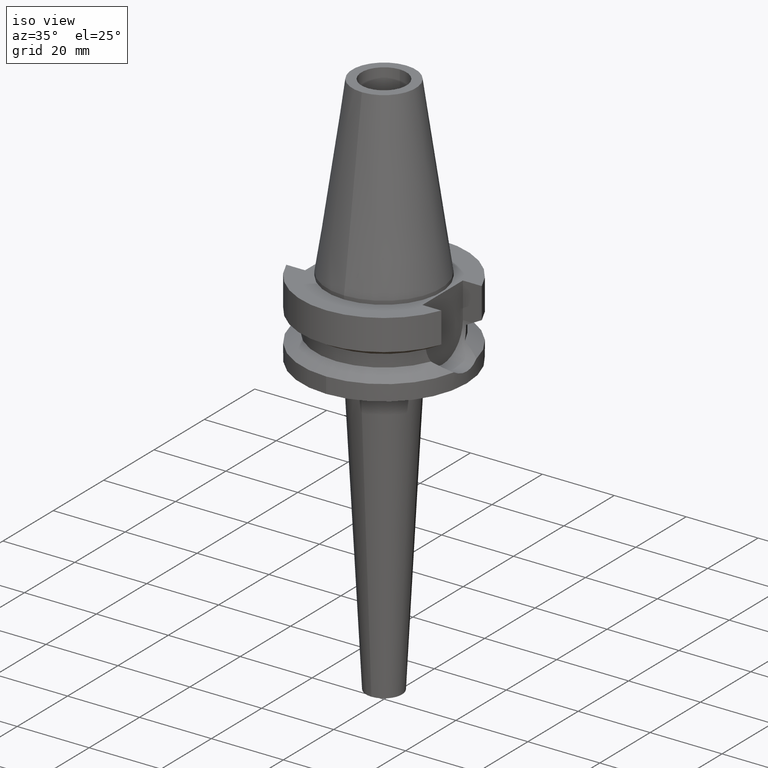
[diagram: clean part render]
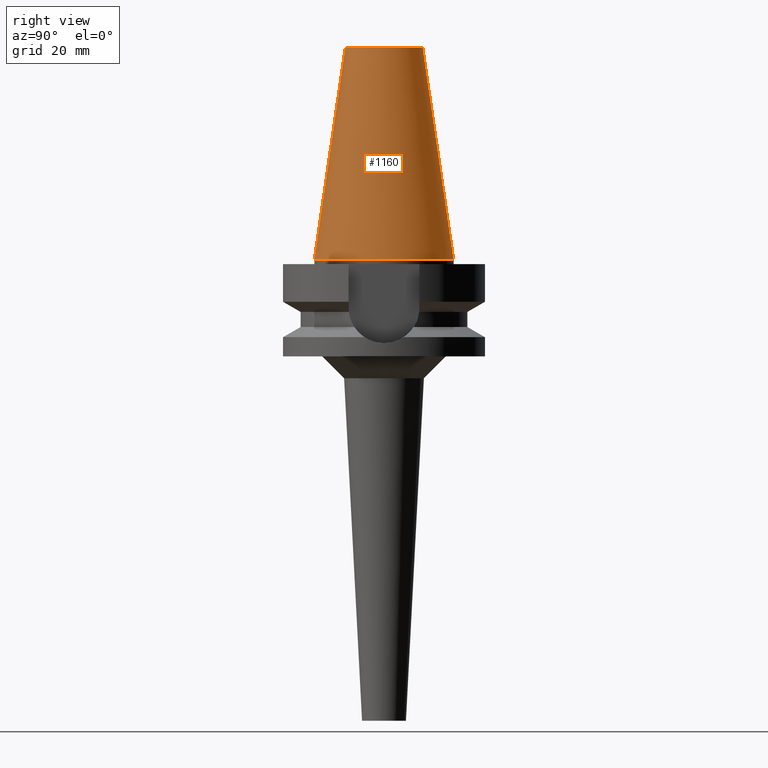
[diagram: tour spotlight — one face highlighted and labeled with its STEP entity id]
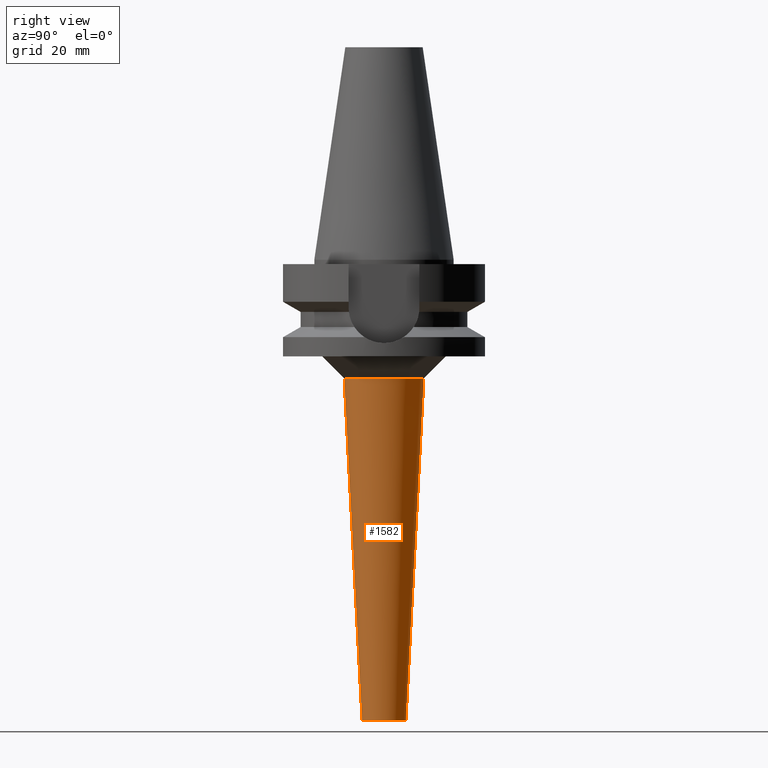
[diagram: tour spotlight — one face highlighted and labeled with its STEP entity id]
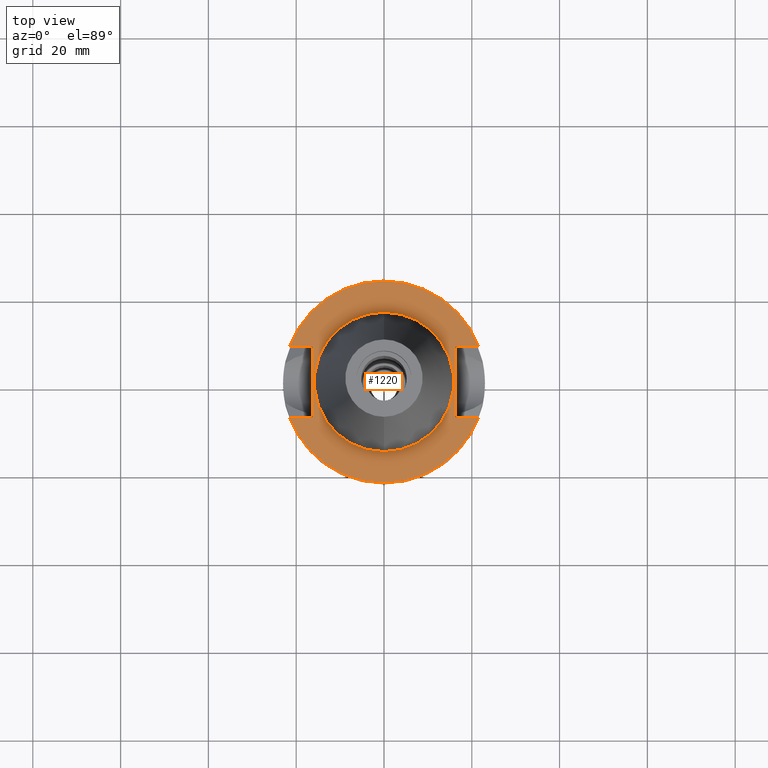
[diagram: tour spotlight — one face highlighted and labeled with its STEP entity id]
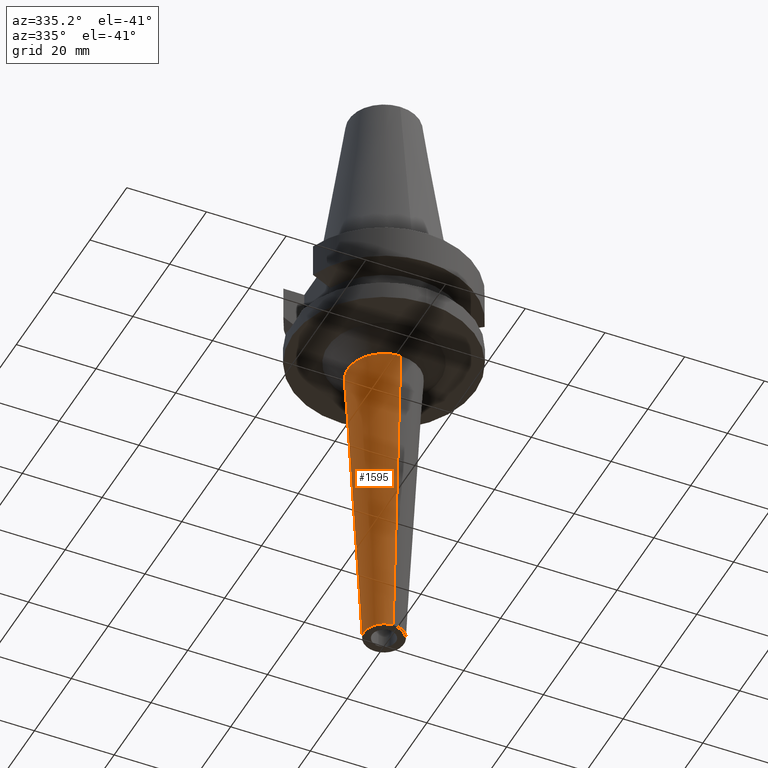
[diagram: tour spotlight — one face highlighted and labeled with its STEP entity id]
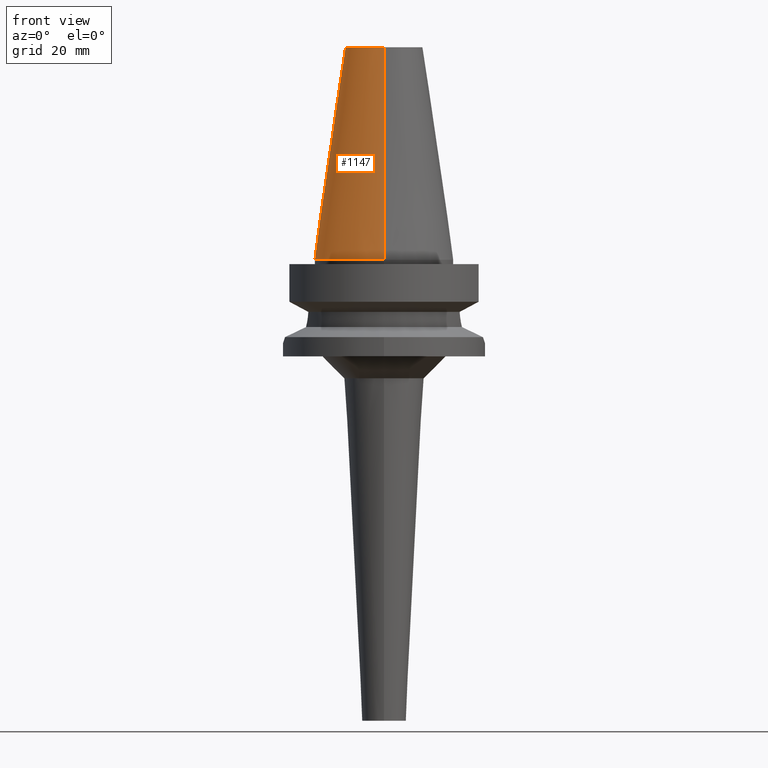
[diagram: tour spotlight — one face highlighted and labeled with its STEP entity id]
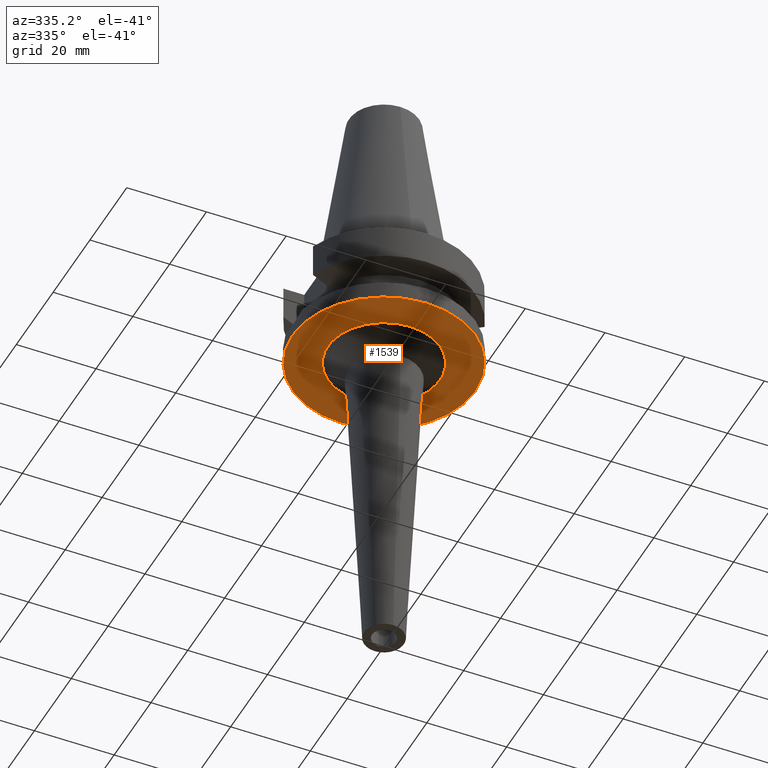
[diagram: tour spotlight — one face highlighted and labeled with its STEP entity id]
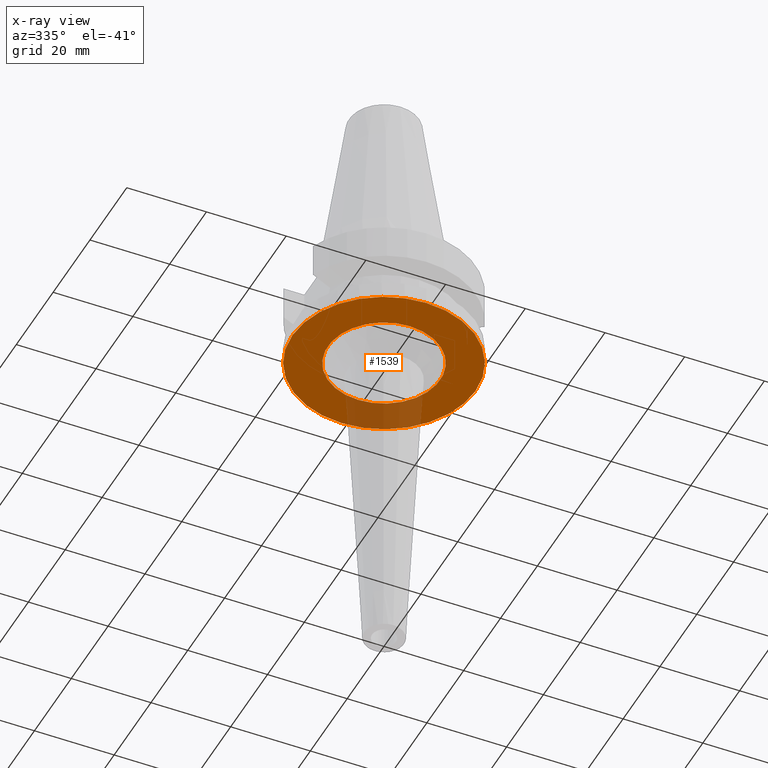
[diagram: x-ray of the same camera — body ghosted, this tour face saturated]
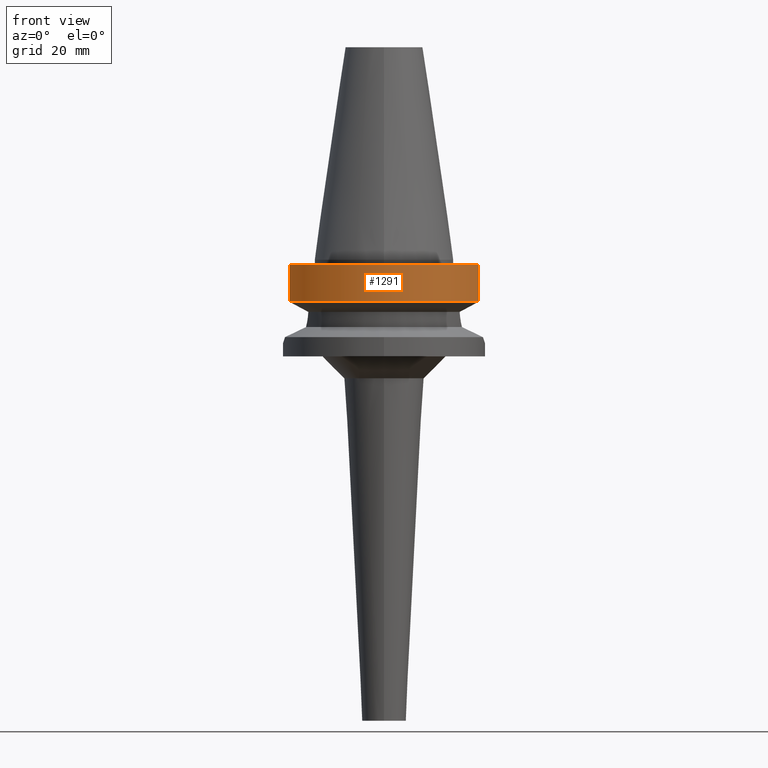
[diagram: tour spotlight — one face highlighted and labeled with its STEP entity id]
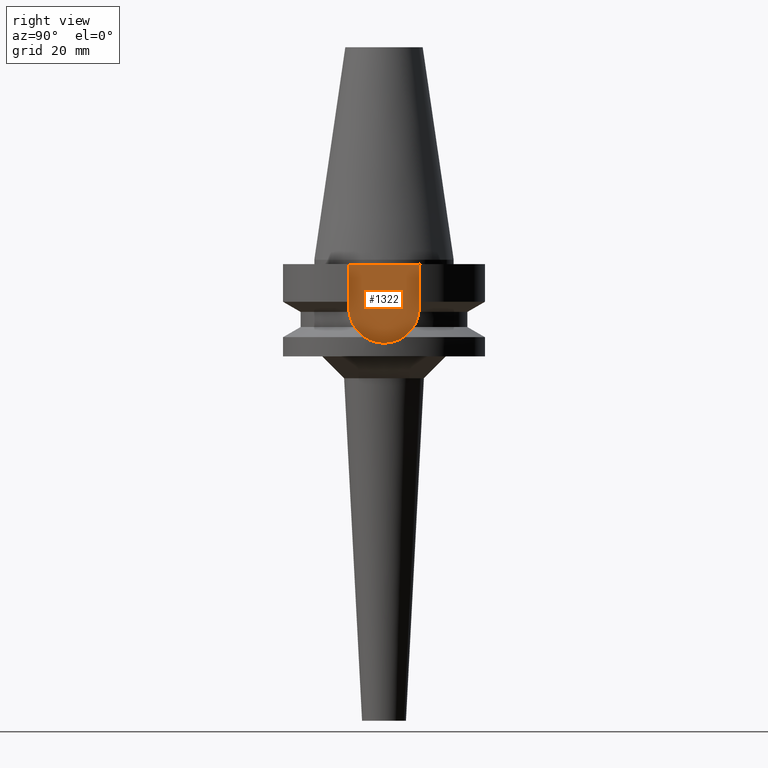
[diagram: tour spotlight — one face highlighted and labeled with its STEP entity id]
A machine part: a face-by-face anatomy tour. The part has 46 B-rep faces; the first image is the clean iso view, then the 8 largest visible faces are spotlighted one at a time (largest first), each with its STEP entity span.

Face 1 — right view, entity #1160. In plain terms, the highlighted conical surface has half-angle 8.297 deg.
Definition (entity closure, byte-faithful):
#26=CARTESIAN_POINT('',(0.E0,1.521011324541E-14,4.84E1));
#27=DIRECTION('',(0.E0,0.E0,-1.E0));
#28=DIRECTION('',(0.E0,1.E0,0.E0));
#29=AXIS2_PLACEMENT_3D('',#26,#27,#28);
#50=DIRECTION('',(0.E0,-1.443043893540E-1,-9.895333461856E-1));
#51=VECTOR('',#50,4.891194438931E1);
#52=CARTESIAN_POINT('',(0.E0,-8.816791732783E0,4.84E1));
#53=LINE('',#52,#51);
#65=DIRECTION('',(0.E0,1.443043893540E-1,-9.895333461856E-1));
#66=VECTOR('',#65,4.891194438931E1);
#67=CARTESIAN_POINT('',(0.E0,8.816791732783E0,4.84E1));
#68=LINE('',#67,#66);
#72=CARTESIAN_POINT('',(0.E0,1.521011324541E-14,-3.694822225953E-13));
#73=DIRECTION('',(0.E0,0.E0,-1.E0));
#74=DIRECTION('',(0.E0,1.E0,0.E0));
#75=AXIS2_PLACEMENT_3D('',#72,#73,#74);
#971=CARTESIAN_POINT('',(0.E0,-8.816791732783E0,4.84E1));
#972=CARTESIAN_POINT('',(0.E0,8.816791732783E0,4.84E1));
#973=VERTEX_POINT('',#971);
#974=VERTEX_POINT('',#972);
#1111=CARTESIAN_POINT('',(0.E0,1.5875E1,-1.776356839400E-13));
#1112=VERTEX_POINT('',#1111);
#1113=CARTESIAN_POINT('',(0.E0,-1.5875E1,-1.776356839400E-13));
#1114=VERTEX_POINT('',#1113);
#1148=CARTESIAN_POINT('',(0.E0,1.521011324541E-14,2.42E1));
#1149=DIRECTION('',(0.E0,0.E0,-1.E0));
#1150=DIRECTION('',(0.E0,-1.E0,0.E0));
#1151=AXIS2_PLACEMENT_3D('',#1148,#1149,#1150);
#1152=CONICAL_SURFACE('',#1151,1.234589586639E1,8.297E0);
#1153=ORIENTED_EDGE('',*,*,#1138,.T.);
#1155=ORIENTED_EDGE('',*,*,#1154,.T.);
#1156=ORIENTED_EDGE('',*,*,#1141,.F.);
#1157=ORIENTED_EDGE('',*,*,#1122,.F.);
#1158=EDGE_LOOP('',(#1153,#1155,#1156,#1157));
#1159=FACE_OUTER_BOUND('',#1158,.F.);
#30=CIRCLE('',#29,8.816791732783E0);
#76=CIRCLE('',#75,1.5875E1);
#1122=EDGE_CURVE('',#974,#973,#30,.T.);
#1138=EDGE_CURVE('',#974,#1112,#68,.T.);
#1141=EDGE_CURVE('',#973,#1114,#53,.T.);
#1154=EDGE_CURVE('',#1112,#1114,#76,.T.);
#1160=ADVANCED_FACE('',(#1159),#1152,.T.);

Face 2 — right view, entity #1582. In plain terms, the highlighted conical surface has half-angle 3 deg.
Definition (entity closure, byte-faithful):
#669=DIRECTION('',(0.E0,-5.233595624295E-2,-9.986295347546E-1));
#670=VECTOR('',#669,7.810704298784E1);
#671=CARTESIAN_POINT('',(0.E0,9.087806784078E0,-2.7E1));
#672=LINE('',#671,#670);
#676=CARTESIAN_POINT('',(0.E0,0.E0,-2.7E1));
#677=DIRECTION('',(0.E0,0.E0,1.E0));
#678=DIRECTION('',(0.E0,-1.E0,0.E0));
#679=AXIS2_PLACEMENT_3D('',#676,#677,#678);
#684=DIRECTION('',(0.E0,5.233595624295E-2,-9.986295347546E-1));
#685=VECTOR('',#684,7.810704298784E1);
#686=CARTESIAN_POINT('',(0.E0,-9.087806784078E0,-2.7E1));
#687=LINE('',#686,#685);
#691=CARTESIAN_POINT('',(0.E0,0.E0,-1.05E2));
#692=DIRECTION('',(0.E0,0.E0,1.E0));
#693=DIRECTION('',(0.E0,-1.E0,0.E0));
#694=AXIS2_PLACEMENT_3D('',#691,#692,#693);
#1019=CARTESIAN_POINT('',(0.E0,-5.E0,-1.05E2));
#1020=CARTESIAN_POINT('',(0.E0,5.E0,-1.05E2));
#1021=VERTEX_POINT('',#1019);
#1022=VERTEX_POINT('',#1020);
#1023=CARTESIAN_POINT('',(0.E0,9.087806784078E0,-2.7E1));
#1024=VERTEX_POINT('',#1023);
#1025=CARTESIAN_POINT('',(0.E0,-9.087806784078E0,-2.7E1));
#1026=VERTEX_POINT('',#1025);
#1568=CARTESIAN_POINT('',(0.E0,0.E0,-6.6E1));
#1569=DIRECTION('',(0.E0,0.E0,1.E0));
#1570=DIRECTION('',(0.E0,1.E0,0.E0));
#1571=AXIS2_PLACEMENT_3D('',#1568,#1569,#1570);
#1572=CONICAL_SURFACE('',#1571,7.043903392039E0,3.E0);
#1574=ORIENTED_EDGE('',*,*,#1573,.T.);
#1576=ORIENTED_EDGE('',*,*,#1575,.F.);
#1578=ORIENTED_EDGE('',*,*,#1577,.F.);
#1579=ORIENTED_EDGE('',*,*,#1561,.T.);
#1580=EDGE_LOOP('',(#1574,#1576,#1578,#1579));
#1581=FACE_OUTER_BOUND('',#1580,.F.);
#680=CIRCLE('',#679,9.087806784078E0);
#695=CIRCLE('',#694,5.E0);
#1561=EDGE_CURVE('',#1026,#1024,#680,.T.);
#1573=EDGE_CURVE('',#1024,#1022,#672,.T.);
#1575=EDGE_CURVE('',#1021,#1022,#695,.T.);
#1577=EDGE_CURVE('',#1026,#1021,#687,.T.);
#1582=ADVANCED_FACE('',(#1581),#1572,.T.);

Face 3 — top view, entity #1220. In plain terms, the highlighted planar face has unit normal (0, 0, -1).
Definition (entity closure, byte-faithful):
#94=DIRECTION('',(0.E0,1.E0,0.E0));
#95=VECTOR('',#94,1.61E1);
#96=CARTESIAN_POINT('',(-1.63E1,-8.05E0,-1.E0));
#97=LINE('',#96,#95);
#101=DIRECTION('',(-1.E0,9.347030801892E-14,0.E0));
#102=VECTOR('',#101,5.245243094473E0);
#103=CARTESIAN_POINT('',(-1.63E1,8.05E0,-1.E0));
#104=LINE('',#103,#102);
#108=CARTESIAN_POINT('',(0.E0,1.911306259429E-14,-1.E0));
#109=DIRECTION('',(0.E0,0.E0,-1.E0));
#110=DIRECTION('',(-9.367496997598E-1,3.5E-1,0.E0));
#111=AXIS2_PLACEMENT_3D('',#108,#109,#110);
#116=CARTESIAN_POINT('',(0.E0,1.911306259429E-14,-1.E0));
#117=DIRECTION('',(0.E0,0.E0,-1.E0));
#118=DIRECTION('',(0.E0,1.E0,0.E0));
#119=AXIS2_PLACEMENT_3D('',#116,#117,#118);
#124=DIRECTION('',(0.E0,-1.E0,0.E0));
#125=VECTOR('',#124,1.61E1);
#126=CARTESIAN_POINT('',(1.63E1,8.05E0,-1.E0));
#127=LINE('',#126,#125);
#131=DIRECTION('',(1.E0,-9.347030801892E-14,0.E0));
#132=VECTOR('',#131,5.245243094473E0);
#133=CARTESIAN_POINT('',(1.63E1,-8.05E0,-1.E0));
#134=LINE('',#133,#132);
#138=CARTESIAN_POINT('',(0.E0,1.911306259429E-14,-1.E0));
#139=DIRECTION('',(0.E0,0.E0,-1.E0));
#140=DIRECTION('',(9.367496997598E-1,-3.5E-1,0.E0));
#141=AXIS2_PLACEMENT_3D('',#138,#139,#140);
#146=CARTESIAN_POINT('',(0.E0,1.911306259429E-14,-1.E0));
#147=DIRECTION('',(0.E0,0.E0,-1.E0));
#148=DIRECTION('',(0.E0,-1.E0,0.E0));
#149=AXIS2_PLACEMENT_3D('',#146,#147,#148);
#154=CARTESIAN_POINT('',(0.E0,1.911306259429E-14,-9.999999999999E-1));
#155=DIRECTION('',(0.E0,0.E0,1.E0));
#156=DIRECTION('',(0.E0,-1.E0,0.E0));
#157=AXIS2_PLACEMENT_3D('',#154,#155,#156);
#162=CARTESIAN_POINT('',(0.E0,1.911306259429E-14,-9.999999999999E-1));
#163=DIRECTION('',(0.E0,0.E0,1.E0));
#164=DIRECTION('',(0.E0,1.E0,0.E0));
#165=AXIS2_PLACEMENT_3D('',#162,#163,#164);
#210=DIRECTION('',(-1.E0,-9.313164748262E-14,0.E0));
#211=VECTOR('',#210,5.245243094473E0);
#212=CARTESIAN_POINT('',(-1.63E1,-8.05E0,-1.E0));
#213=LINE('',#212,#211);
#333=DIRECTION('',(1.E0,9.380896855522E-14,0.E0));
#334=VECTOR('',#333,5.245243094473E0);
#335=CARTESIAN_POINT('',(1.63E1,8.05E0,-1.E0));
#336=LINE('',#335,#334);
#1087=CARTESIAN_POINT('',(-1.63E1,-8.05E0,-1.E0));
#1088=VERTEX_POINT('',#1087);
#1089=CARTESIAN_POINT('',(-2.154524309447E1,-8.05E0,-1.E0));
#1090=VERTEX_POINT('',#1089);
#1091=CARTESIAN_POINT('',(-1.63E1,8.05E0,-1.E0));
#1092=VERTEX_POINT('',#1091);
#1093=CARTESIAN_POINT('',(-2.154524309447E1,8.05E0,-1.E0));
#1094=VERTEX_POINT('',#1093);
#1095=CARTESIAN_POINT('',(0.E0,2.3E1,-1.E0));
#1096=CARTESIAN_POINT('',(2.154524309447E1,8.05E0,-1.E0));
#1097=VERTEX_POINT('',#1095);
#1098=VERTEX_POINT('',#1096);
#1099=CARTESIAN_POINT('',(1.63E1,8.05E0,-1.E0));
#1100=VERTEX_POINT('',#1099);
#1101=CARTESIAN_POINT('',(1.63E1,-8.05E0,-1.E0));
#1102=VERTEX_POINT('',#1101);
#1103=CARTESIAN_POINT('',(2.154524309447E1,-8.05E0,-1.E0));
#1104=VERTEX_POINT('',#1103);
#1105=CARTESIAN_POINT('',(0.E0,-2.3E1,-1.E0));
#1106=VERTEX_POINT('',#1105);
#1107=CARTESIAN_POINT('',(0.E0,-1.5875E1,-9.999999999999E-1));
#1108=CARTESIAN_POINT('',(0.E0,1.5875E1,-9.999999999999E-1));
#1109=VERTEX_POINT('',#1107);
#1110=VERTEX_POINT('',#1108);
#1189=CARTESIAN_POINT('',(0.E0,1.212400331156E-14,-1.E0));
#1190=DIRECTION('',(0.E0,0.E0,-1.E0));
#1191=DIRECTION('',(0.E0,-1.E0,0.E0));
#1192=AXIS2_PLACEMENT_3D('',#1189,#1190,#1191);
#1193=PLANE('',#1192);
#1195=ORIENTED_EDGE('',*,*,#1194,.T.);
#1197=ORIENTED_EDGE('',*,*,#1196,.T.);
#1199=ORIENTED_EDGE('',*,*,#1198,.T.);
#1201=ORIENTED_EDGE('',*,*,#1200,.T.);
#1203=ORIENTED_EDGE('',*,*,#1202,.F.);
#1205=ORIENTED_EDGE('',*,*,#1204,.T.);
#1207=ORIENTED_EDGE('',*,*,#1206,.T.);
#1209=ORIENTED_EDGE('',*,*,#1208,.T.);
#1211=ORIENTED_EDGE('',*,*,#1210,.T.);
#1213=ORIENTED_EDGE('',*,*,#1212,.F.);
#1214=EDGE_LOOP('',(#1195,#1197,#1199,#1201,#1203,#1205,#1207,#1209,#1211,
#1213));
#1215=FACE_OUTER_BOUND('',#1214,.F.);
#1216=ORIENTED_EDGE('',*,*,#1168,.T.);
#1217=ORIENTED_EDGE('',*,*,#1184,.T.);
#1218=EDGE_LOOP('',(#1216,#1217));
#1219=FACE_BOUND('',#1218,.F.);
#112=CIRCLE('',#111,2.3E1);
#120=CIRCLE('',#119,2.3E1);
#142=CIRCLE('',#141,2.3E1);
#150=CIRCLE('',#149,2.3E1);
#158=CIRCLE('',#157,1.5875E1);
#166=CIRCLE('',#165,1.5875E1);
#1168=EDGE_CURVE('',#1109,#1110,#158,.T.);
#1184=EDGE_CURVE('',#1110,#1109,#166,.T.);
#1194=EDGE_CURVE('',#1088,#1092,#97,.T.);
#1196=EDGE_CURVE('',#1092,#1094,#104,.T.);
#1198=EDGE_CURVE('',#1094,#1097,#112,.T.);
#1200=EDGE_CURVE('',#1097,#1098,#120,.T.);
#1202=EDGE_CURVE('',#1100,#1098,#336,.T.);
#1204=EDGE_CURVE('',#1100,#1102,#127,.T.);
#1206=EDGE_CURVE('',#1102,#1104,#134,.T.);
#1208=EDGE_CURVE('',#1104,#1106,#142,.T.);
#1210=EDGE_CURVE('',#1106,#1090,#150,.T.);
#1212=EDGE_CURVE('',#1088,#1090,#213,.T.);
#1220=ADVANCED_FACE('',(#1215,#1219),#1193,.F.);

Face 4 — auxiliary view, entity #1595. In plain terms, the highlighted conical surface has half-angle 3 deg.
Definition (entity closure, byte-faithful):
#654=CARTESIAN_POINT('',(0.E0,0.E0,-2.7E1));
#655=DIRECTION('',(0.E0,0.E0,-1.E0));
#656=DIRECTION('',(0.E0,-1.E0,0.E0));
#657=AXIS2_PLACEMENT_3D('',#654,#655,#656);
#669=DIRECTION('',(0.E0,-5.233595624295E-2,-9.986295347546E-1));
#670=VECTOR('',#669,7.810704298784E1);
#671=CARTESIAN_POINT('',(0.E0,9.087806784078E0,-2.7E1));
#672=LINE('',#671,#670);
#684=DIRECTION('',(0.E0,5.233595624295E-2,-9.986295347546E-1));
#685=VECTOR('',#684,7.810704298784E1);
#686=CARTESIAN_POINT('',(0.E0,-9.087806784078E0,-2.7E1));
#687=LINE('',#686,#685);
#699=CARTESIAN_POINT('',(0.E0,0.E0,-1.05E2));
#700=DIRECTION('',(0.E0,0.E0,1.E0));
#701=DIRECTION('',(0.E0,1.E0,0.E0));
#702=AXIS2_PLACEMENT_3D('',#699,#700,#701);
#1019=CARTESIAN_POINT('',(0.E0,-5.E0,-1.05E2));
#1020=CARTESIAN_POINT('',(0.E0,5.E0,-1.05E2));
#1021=VERTEX_POINT('',#1019);
#1022=VERTEX_POINT('',#1020);
#1023=CARTESIAN_POINT('',(0.E0,9.087806784078E0,-2.7E1));
#1024=VERTEX_POINT('',#1023);
#1025=CARTESIAN_POINT('',(0.E0,-9.087806784078E0,-2.7E1));
#1026=VERTEX_POINT('',#1025);
#1583=CARTESIAN_POINT('',(0.E0,0.E0,-6.6E1));
#1584=DIRECTION('',(0.E0,0.E0,1.E0));
#1585=DIRECTION('',(0.E0,1.E0,0.E0));
#1586=AXIS2_PLACEMENT_3D('',#1583,#1584,#1585);
#1587=CONICAL_SURFACE('',#1586,7.043903392039E0,3.E0);
#1588=ORIENTED_EDGE('',*,*,#1573,.F.);
#1589=ORIENTED_EDGE('',*,*,#1550,.F.);
#1590=ORIENTED_EDGE('',*,*,#1577,.T.);
#1592=ORIENTED_EDGE('',*,*,#1591,.F.);
#1593=EDGE_LOOP('',(#1588,#1589,#1590,#1592));
#1594=FACE_OUTER_BOUND('',#1593,.F.);
#658=CIRCLE('',#657,9.087806784079E0);
#703=CIRCLE('',#702,5.E0);
#1550=EDGE_CURVE('',#1026,#1024,#658,.T.);
#1573=EDGE_CURVE('',#1024,#1022,#672,.T.);
#1577=EDGE_CURVE('',#1026,#1021,#687,.T.);
#1591=EDGE_CURVE('',#1022,#1021,#703,.T.);
#1595=ADVANCED_FACE('',(#1594),#1587,.T.);

Face 5 — front view, entity #1147. In plain terms, the highlighted conical surface has half-angle 8.297 deg.
Definition (entity closure, byte-faithful):
#17=CARTESIAN_POINT('',(0.E0,1.521011324541E-14,4.84E1));
#18=DIRECTION('',(0.E0,0.E0,-1.E0));
#19=DIRECTION('',(0.E0,-1.E0,0.E0));
#20=AXIS2_PLACEMENT_3D('',#17,#18,#19);
#50=DIRECTION('',(0.E0,-1.443043893540E-1,-9.895333461856E-1));
#51=VECTOR('',#50,4.891194438931E1);
#52=CARTESIAN_POINT('',(0.E0,-8.816791732783E0,4.84E1));
#53=LINE('',#52,#51);
#57=CARTESIAN_POINT('',(0.E0,1.521011324541E-14,-3.694822225953E-13));
#58=DIRECTION('',(0.E0,0.E0,-1.E0));
#59=DIRECTION('',(0.E0,-1.E0,0.E0));
#60=AXIS2_PLACEMENT_3D('',#57,#58,#59);
#65=DIRECTION('',(0.E0,1.443043893540E-1,-9.895333461856E-1));
#66=VECTOR('',#65,4.891194438931E1);
#67=CARTESIAN_POINT('',(0.E0,8.816791732783E0,4.84E1));
#68=LINE('',#67,#66);
#971=CARTESIAN_POINT('',(0.E0,-8.816791732783E0,4.84E1));
#972=CARTESIAN_POINT('',(0.E0,8.816791732783E0,4.84E1));
#973=VERTEX_POINT('',#971);
#974=VERTEX_POINT('',#972);
#1111=CARTESIAN_POINT('',(0.E0,1.5875E1,-1.776356839400E-13));
#1112=VERTEX_POINT('',#1111);
#1113=CARTESIAN_POINT('',(0.E0,-1.5875E1,-1.776356839400E-13));
#1114=VERTEX_POINT('',#1113);
#1133=CARTESIAN_POINT('',(0.E0,1.521011324541E-14,2.42E1));
#1134=DIRECTION('',(0.E0,0.E0,-1.E0));
#1135=DIRECTION('',(0.E0,-1.E0,0.E0));
#1136=AXIS2_PLACEMENT_3D('',#1133,#1134,#1135);
#1137=CONICAL_SURFACE('',#1136,1.234589586639E1,8.297E0);
#1139=ORIENTED_EDGE('',*,*,#1138,.F.);
#1140=ORIENTED_EDGE('',*,*,#1120,.F.);
#1142=ORIENTED_EDGE('',*,*,#1141,.T.);
#1144=ORIENTED_EDGE('',*,*,#1143,.T.);
#1145=EDGE_LOOP('',(#1139,#1140,#1142,#1144));
#1146=FACE_OUTER_BOUND('',#1145,.F.);
#21=CIRCLE('',#20,8.816791732783E0);
#61=CIRCLE('',#60,1.5875E1);
#1120=EDGE_CURVE('',#973,#974,#21,.T.);
#1138=EDGE_CURVE('',#974,#1112,#68,.T.);
#1141=EDGE_CURVE('',#973,#1114,#53,.T.);
#1143=EDGE_CURVE('',#1114,#1112,#61,.T.);
#1147=ADVANCED_FACE('',(#1146),#1137,.T.);

Face 6 — auxiliary view, entity #1539. An x-ray twin of the same camera follows (body ghosted, this face saturated) — the face is partly hidden behind the body. In plain terms, the highlighted planar face has unit normal (0, 0, -1).
Definition (entity closure, byte-faithful):
#615=CARTESIAN_POINT('',(0.E0,1.911306259429E-14,-2.2E1));
#616=DIRECTION('',(0.E0,0.E0,1.E0));
#617=DIRECTION('',(0.E0,-1.E0,0.E0));
#618=AXIS2_PLACEMENT_3D('',#615,#616,#617);
#623=CARTESIAN_POINT('',(0.E0,1.911306259429E-14,-2.2E1));
#624=DIRECTION('',(0.E0,0.E0,1.E0));
#625=DIRECTION('',(0.E0,1.E0,0.E0));
#626=AXIS2_PLACEMENT_3D('',#623,#624,#625);
#631=CARTESIAN_POINT('',(0.E0,0.E0,-2.2E1));
#632=DIRECTION('',(0.E0,0.E0,-1.E0));
#633=DIRECTION('',(0.E0,-1.E0,0.E0));
#634=AXIS2_PLACEMENT_3D('',#631,#632,#633);
#639=CARTESIAN_POINT('',(0.E0,0.E0,-2.2E1));
#640=DIRECTION('',(0.E0,0.E0,-1.E0));
#641=DIRECTION('',(0.E0,1.E0,0.E0));
#642=AXIS2_PLACEMENT_3D('',#639,#640,#641);
#1027=CARTESIAN_POINT('',(0.E0,1.408780678408E1,-2.2E1));
#1028=VERTEX_POINT('',#1027);
#1029=CARTESIAN_POINT('',(0.E0,-1.408780678408E1,-2.2E1));
#1030=VERTEX_POINT('',#1029);
#1031=CARTESIAN_POINT('',(0.E0,-2.3E1,-2.2E1));
#1032=CARTESIAN_POINT('',(0.E0,2.3E1,-2.2E1));
#1033=VERTEX_POINT('',#1031);
#1034=VERTEX_POINT('',#1032);
#1524=CARTESIAN_POINT('',(0.E0,0.E0,-2.2E1));
#1525=DIRECTION('',(0.E0,0.E0,-1.E0));
#1526=DIRECTION('',(0.E0,-1.E0,0.E0));
#1527=AXIS2_PLACEMENT_3D('',#1524,#1525,#1526);
#1528=PLANE('',#1527);
#1529=ORIENTED_EDGE('',*,*,#1484,.T.);
#1530=ORIENTED_EDGE('',*,*,#1517,.T.);
#1531=EDGE_LOOP('',(#1529,#1530));
#1532=FACE_OUTER_BOUND('',#1531,.F.);
#1534=ORIENTED_EDGE('',*,*,#1533,.T.);
#1536=ORIENTED_EDGE('',*,*,#1535,.T.);
#1537=EDGE_LOOP('',(#1534,#1536));
#1538=FACE_BOUND('',#1537,.F.);
#619=CIRCLE('',#618,2.3E1);
#627=CIRCLE('',#626,2.3E1);
#635=CIRCLE('',#634,1.408780678408E1);
#643=CIRCLE('',#642,1.408780678408E1);
#1484=EDGE_CURVE('',#1033,#1034,#619,.T.);
#1517=EDGE_CURVE('',#1034,#1033,#627,.T.);
#1533=EDGE_CURVE('',#1030,#1028,#635,.T.);
#1535=EDGE_CURVE('',#1028,#1030,#643,.T.);
#1539=ADVANCED_FACE('',(#1532,#1538),#1528,.T.);

Face 7 — front view, entity #1291. In plain terms, the highlighted cylindrical surface (partial cylindrical patch) has radius 23 mm, axis along (0, 0, -1).
Definition (entity closure, byte-faithful):
#138=CARTESIAN_POINT('',(0.E0,1.911306259429E-14,-1.E0));
#139=DIRECTION('',(0.E0,0.E0,-1.E0));
#140=DIRECTION('',(9.367496997598E-1,-3.5E-1,0.E0));
#141=AXIS2_PLACEMENT_3D('',#138,#139,#140);
#146=CARTESIAN_POINT('',(0.E0,1.911306259429E-14,-1.E0));
#147=DIRECTION('',(0.E0,0.E0,-1.E0));
#148=DIRECTION('',(0.E0,-1.E0,0.E0));
#149=AXIS2_PLACEMENT_3D('',#146,#147,#148);
#200=CARTESIAN_POINT('',(-2.154524325238E1,-8.049999577366E0,
-9.567211146629E0));
#217=CARTESIAN_POINT('',(0.E0,1.093341284897E-14,-9.567208369711E0));
#218=DIRECTION('',(0.E0,0.E0,1.E0));
#219=DIRECTION('',(-9.367496997597E-1,-3.500000000001E-1,0.E0));
#220=AXIS2_PLACEMENT_3D('',#217,#218,#219);
#225=CARTESIAN_POINT('',(0.E0,1.093341284897E-14,-9.567208369711E0));
#226=DIRECTION('',(0.E0,0.E0,1.E0));
#227=DIRECTION('',(0.E0,-1.E0,0.E0));
#228=AXIS2_PLACEMENT_3D('',#225,#226,#227);
#269=DIRECTION('',(1.843189971013E-8,-4.933165846938E-8,1.E0));
#270=VECTOR('',#269,8.567211146629E0);
#271=CARTESIAN_POINT('',(-2.154524325238E1,-8.049999577366E0,
-9.567211146629E0));
#272=LINE('',#271,#270);
#276=DIRECTION('',(-9.134802486953E-8,-2.444862507564E-7,-1.E0));
#277=VECTOR('',#276,8.567194606554E0);
#278=CARTESIAN_POINT('',(2.154524309447E1,-8.05E0,-1.E0));
#279=LINE('',#278,#277);
#1078=VERTEX_POINT('',#200);
#1079=CARTESIAN_POINT('',(0.E0,-2.3E1,-9.567208369711E0));
#1080=CARTESIAN_POINT('',(2.154524309447E1,-8.050000000001E0,
-9.567208369711E0));
#1081=VERTEX_POINT('',#1079);
#1082=VERTEX_POINT('',#1080);
#1089=CARTESIAN_POINT('',(-2.154524309447E1,-8.05E0,-1.E0));
#1090=VERTEX_POINT('',#1089);
#1103=CARTESIAN_POINT('',(2.154524309447E1,-8.05E0,-1.E0));
#1104=VERTEX_POINT('',#1103);
#1105=CARTESIAN_POINT('',(0.E0,-2.3E1,-1.E0));
#1106=VERTEX_POINT('',#1105);
#1277=CARTESIAN_POINT('',(0.E0,1.911306259429E-14,5.607E1));
#1278=DIRECTION('',(0.E0,0.E0,-1.E0));
#1279=DIRECTION('',(0.E0,-1.E0,0.E0));
#1280=AXIS2_PLACEMENT_3D('',#1277,#1278,#1279);
#1281=CYLINDRICAL_SURFACE('',#1280,2.3E1);
#1282=ORIENTED_EDGE('',*,*,#1249,.T.);
#1283=ORIENTED_EDGE('',*,*,#1210,.F.);
#1284=ORIENTED_EDGE('',*,*,#1208,.F.);
#1286=ORIENTED_EDGE('',*,*,#1285,.T.);
#1287=ORIENTED_EDGE('',*,*,#1262,.F.);
#1288=ORIENTED_EDGE('',*,*,#1260,.F.);
#1289=EDGE_LOOP('',(#1282,#1283,#1284,#1286,#1287,#1288));
#1290=FACE_OUTER_BOUND('',#1289,.F.);
#142=CIRCLE('',#141,2.3E1);
#150=CIRCLE('',#149,2.3E1);
#221=CIRCLE('',#220,2.3E1);
#229=CIRCLE('',#228,2.3E1);
#1208=EDGE_CURVE('',#1104,#1106,#142,.T.);
#1210=EDGE_CURVE('',#1106,#1090,#150,.T.);
#1249=EDGE_CURVE('',#1078,#1090,#272,.T.);
#1260=EDGE_CURVE('',#1078,#1081,#221,.T.);
#1262=EDGE_CURVE('',#1081,#1082,#229,.T.);
#1285=EDGE_CURVE('',#1104,#1082,#279,.T.);
#1291=ADVANCED_FACE('',(#1290),#1281,.T.);

Face 8 — right view, entity #1322. In plain terms, the highlighted planar face has unit normal (1, 0, 0).
Definition (entity closure, byte-faithful):
#124=DIRECTION('',(0.E0,-1.E0,0.E0));
#125=VECTOR('',#124,1.61E1);
#126=CARTESIAN_POINT('',(1.63E1,8.05E0,-1.E0));
#127=LINE('',#126,#125);
#293=DIRECTION('',(0.E0,0.E0,-1.E0));
#294=VECTOR('',#293,9.95E0);
#295=CARTESIAN_POINT('',(1.63E1,8.05E0,-1.E0));
#296=LINE('',#295,#294);
#300=CARTESIAN_POINT('',(1.63E1,0.E0,-1.095E1));
#301=DIRECTION('',(-1.E0,0.E0,0.E0));
#302=DIRECTION('',(0.E0,1.E0,0.E0));
#303=AXIS2_PLACEMENT_3D('',#300,#301,#302);
#308=CARTESIAN_POINT('',(1.63E1,0.E0,-1.095E1));
#309=DIRECTION('',(-1.E0,0.E0,0.E0));
#310=DIRECTION('',(0.E0,0.E0,-1.E0));
#311=AXIS2_PLACEMENT_3D('',#308,#309,#310);
#316=DIRECTION('',(0.E0,0.E0,1.E0));
#317=VECTOR('',#316,9.95E0);
#318=CARTESIAN_POINT('',(1.63E1,-8.05E0,-1.095E1));
#319=LINE('',#318,#317);
#1045=CARTESIAN_POINT('',(1.63E1,-8.05E0,-1.095E1));
#1046=VERTEX_POINT('',#1045);
#1047=CARTESIAN_POINT('',(1.63E1,0.E0,-1.9E1));
#1048=VERTEX_POINT('',#1047);
#1049=CARTESIAN_POINT('',(1.63E1,8.05E0,-1.095E1));
#1050=VERTEX_POINT('',#1049);
#1099=CARTESIAN_POINT('',(1.63E1,8.05E0,-1.E0));
#1100=VERTEX_POINT('',#1099);
#1101=CARTESIAN_POINT('',(1.63E1,-8.05E0,-1.E0));
#1102=VERTEX_POINT('',#1101);
#1307=CARTESIAN_POINT('',(1.63E1,0.E0,0.E0));
#1308=DIRECTION('',(1.E0,0.E0,0.E0));
#1309=DIRECTION('',(0.E0,0.E0,-1.E0));
#1310=AXIS2_PLACEMENT_3D('',#1307,#1308,#1309);
#1311=PLANE('',#1310);
#1312=ORIENTED_EDGE('',*,*,#1204,.F.);
#1314=ORIENTED_EDGE('',*,*,#1313,.T.);
#1316=ORIENTED_EDGE('',*,*,#1315,.T.);
#1318=ORIENTED_EDGE('',*,*,#1317,.T.);
#1319=ORIENTED_EDGE('',*,*,#1300,.T.);
#1320=EDGE_LOOP('',(#1312,#1314,#1316,#1318,#1319));
#1321=FACE_OUTER_BOUND('',#1320,.F.);
#304=CIRCLE('',#303,8.05E0);
#312=CIRCLE('',#311,8.05E0);
#1204=EDGE_CURVE('',#1100,#1102,#127,.T.);
#1300=EDGE_CURVE('',#1046,#1102,#319,.T.);
#1313=EDGE_CURVE('',#1100,#1050,#296,.T.);
#1315=EDGE_CURVE('',#1050,#1048,#304,.T.);
#1317=EDGE_CURVE('',#1048,#1046,#312,.T.);
#1322=ADVANCED_FACE('',(#1321),#1311,.T.);